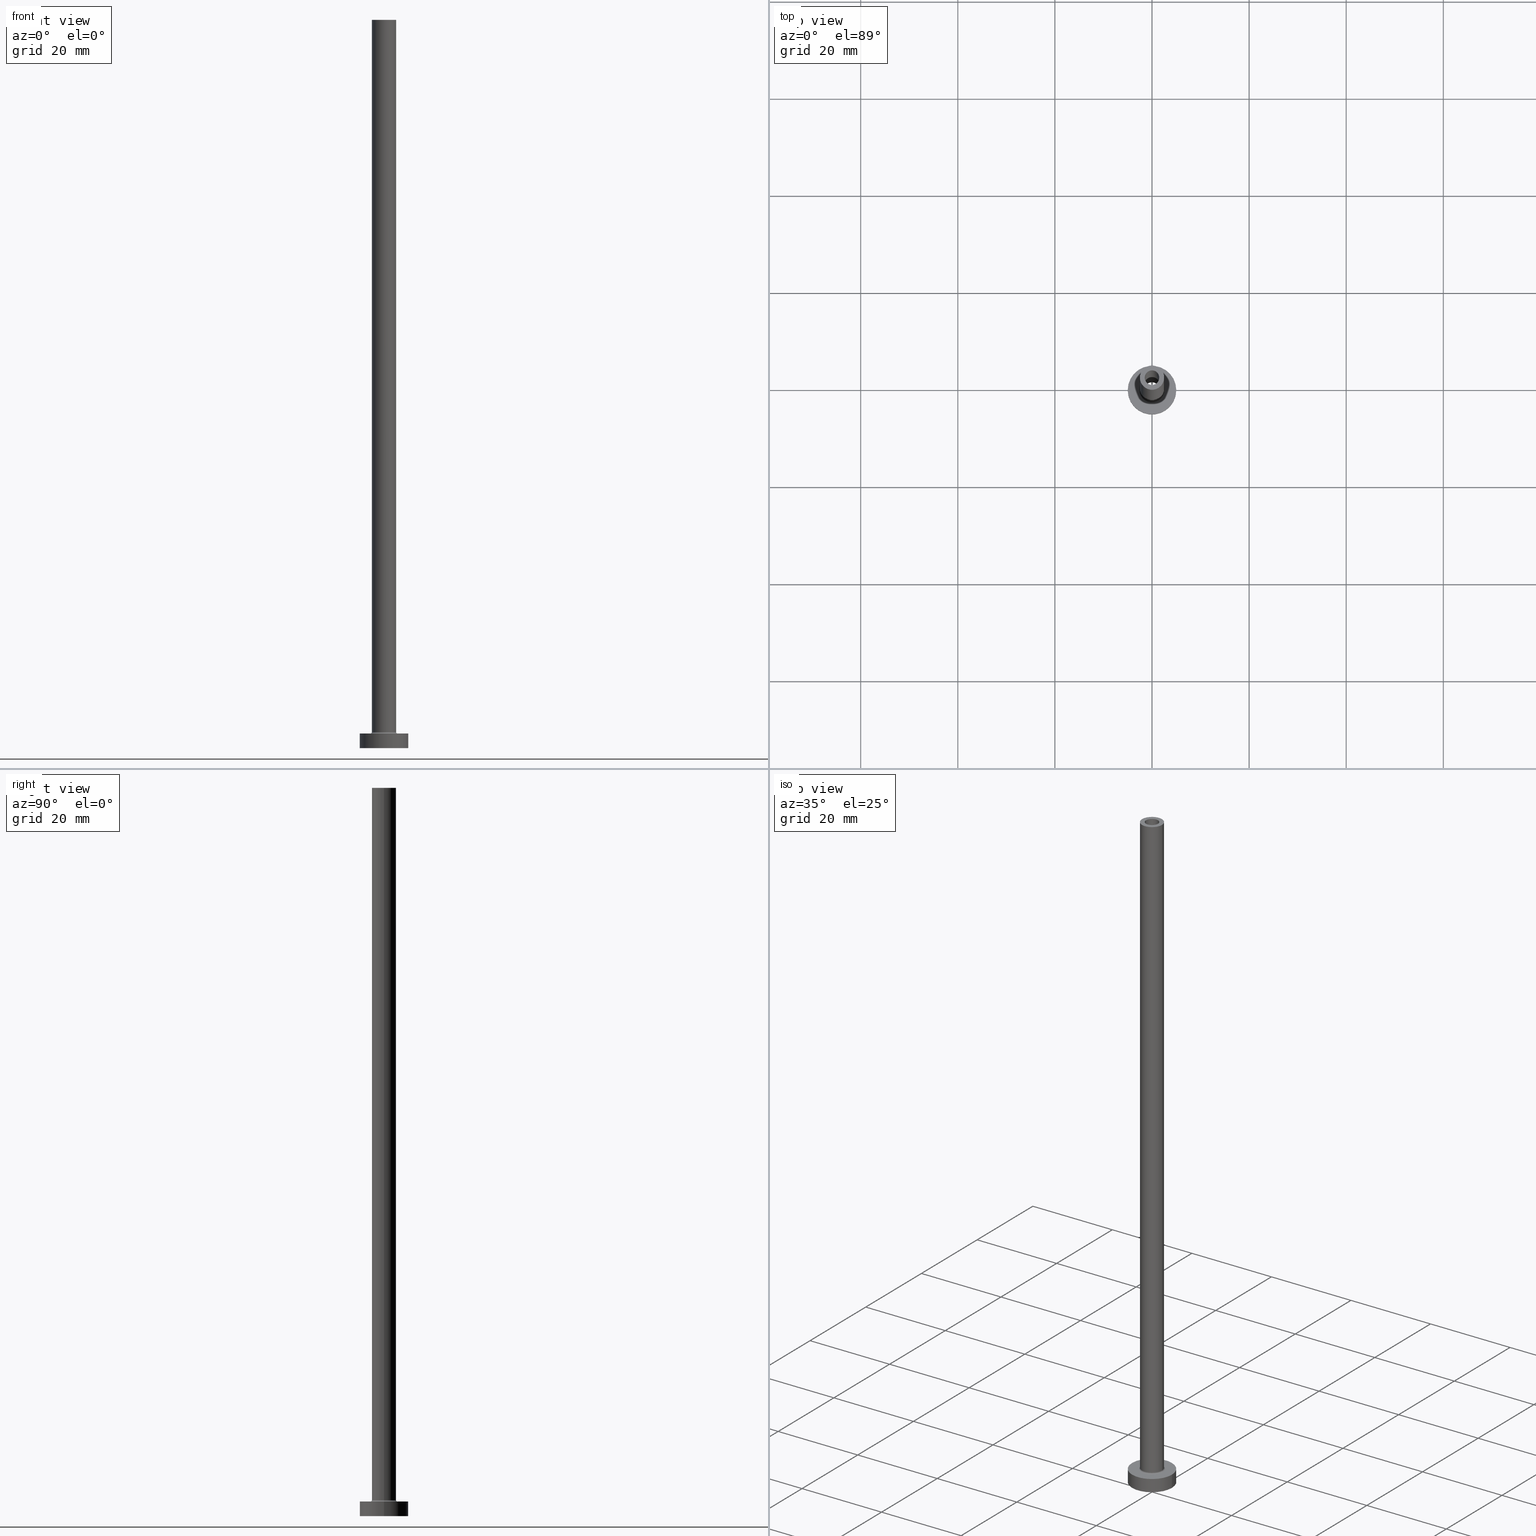
[diagram: canonical four-view strip — front | top / right | iso, engineering-drawing reading convention]
A machine part, canonical four-view strip (front | top / right | iso — engineering-drawing reading convention). The complete STEP part file that produces these views, byte-faithful:
ISO-10303-21;
HEADER;
FILE_DESCRIPTION (( 'STEP AP203' ),
    '1' );
FILE_NAME ('1228.STEP',
    '2023-02-13T12:04:37',
    ( '' ),
    ( '' ),
    'SwSTEP 2.0',
    'SolidWorks 2019',
    '' );
FILE_SCHEMA (( 'CONFIG_CONTROL_DESIGN' ));
ENDSEC;

DATA;
#1 = CARTESIAN_POINT ( 'NONE',  ( -1.500000000000000222, 0.000000000000000000, 105.0000000000000000 ) ) ;
#2 = FACE_OUTER_BOUND ( 'NONE', #183, .T. ) ;
#3 = ORIENTED_EDGE ( 'NONE', *, *, #229, .F. ) ;
#4 = CYLINDRICAL_SURFACE ( 'NONE', #396, 5.000000000000000000 ) ;
#5 = CARTESIAN_POINT ( 'NONE',  ( 2.799999999999999822, 0.000000000000000000, 2.999999999999998668 ) ) ;
#6 = APPROVAL ( #346, 'NEUR�EN�' ) ;
#7 = VERTEX_POINT ( 'NONE', #337 ) ;
#8 = DIRECTION ( 'NONE',  ( -1.000000000000000000, 0.000000000000000000, 0.000000000000000000 ) ) ;
#9 = ORIENTED_EDGE ( 'NONE', *, *, #54, .F. ) ;
#10 = CIRCLE ( 'NONE', #133, 1.650000000000000133 ) ;
#11 = APPLICATION_PROTOCOL_DEFINITION ( 'international standard', 'config_control_design', 1994, #374 ) ;
#12 = ORIENTED_EDGE ( 'NONE', *, *, #421, .F. ) ;
#13 = APPLICATION_PROTOCOL_DEFINITION ( 'international standard', 'config_control_design', 1994, #426 ) ;
#14 = VERTEX_POINT ( 'NONE', #269 ) ;
#15 = LOCAL_TIME ( 13, 4, 37.00000000000000000, #121 ) ;
#16 = CC_DESIGN_PERSON_AND_ORGANIZATION_ASSIGNMENT ( #240, #271, ( #317 ) ) ;
#17 = DIRECTION ( 'NONE',  ( 1.000000000000000000, 0.000000000000000000, 0.000000000000000000 ) ) ;
#18 = EDGE_CURVE ( 'NONE', #353, #49, #415, .T. ) ;
#19 = CARTESIAN_POINT ( 'NONE',  ( 5.000000000000000000, 6.123233995736766282E-16, 0.000000000000000000 ) ) ;
#20 = CYLINDRICAL_SURFACE ( 'NONE', #324, 5.000000000000000000 ) ;
#21 = ORIENTED_EDGE ( 'NONE', *, *, #168, .T. ) ;
#22 = DIRECTION ( 'NONE',  ( 0.000000000000000000, 0.000000000000000000, 1.000000000000000000 ) ) ;
#23 = VERTEX_POINT ( 'NONE', #19 ) ;
#24 = AXIS2_PLACEMENT_3D ( 'NONE', #432, #33, #389 ) ;
#25 = EDGE_CURVE ( 'NONE', #122, #326, #340, .T. ) ;
#26 = DIRECTION ( 'NONE',  ( -1.000000000000000000, 0.000000000000000000, 0.000000000000000000 ) ) ;
#27 = PLANE ( 'NONE',  #203 ) ;
#28 = CALENDAR_DATE ( 2023, 13, 2 ) ;
#29 = CARTESIAN_POINT ( 'NONE',  ( 0.000000000000000000, 0.000000000000000000, 150.0000000000000000 ) ) ;
#30 = CARTESIAN_POINT ( 'NONE',  ( 0.000000000000000000, 0.000000000000000000, 150.0000000000000000 ) ) ;
#31 = CLOSED_SHELL ( 'NONE', ( #404, #264, #224, #156, #293, #443, #247, #218, #370, #272, #47, #151, #452, #221 ) ) ;
#32 = DIRECTION ( 'NONE',  ( 1.000000000000000000, 0.000000000000000000, 0.000000000000000000 ) ) ;
#33 = DIRECTION ( 'NONE',  ( 0.000000000000000000, 0.000000000000000000, 1.000000000000000000 ) ) ;
#34 = EDGE_CURVE ( 'NONE', #286, #7, #140, .T. ) ;
#35 = CIRCLE ( 'NONE', #335, 5.000000000000000000 ) ;
#36 = APPROVAL_PERSON_ORGANIZATION ( #363, #277, #185 ) ;
#37 = DIRECTION ( 'NONE',  ( -0.000000000000000000, -0.000000000000000000, -1.000000000000000000 ) ) ;
#38 = ORIENTED_EDGE ( 'NONE', *, *, #444, .F. ) ;
#39 = PERSON_AND_ORGANIZATION ( #193, #236 ) ;
#40 = DIRECTION ( 'NONE',  ( 1.000000000000000000, 0.000000000000000000, 0.000000000000000000 ) ) ;
#41 = CARTESIAN_POINT ( 'NONE',  ( 0.000000000000000000, 0.000000000000000000, 150.0000000000000000 ) ) ;
#42 = AXIS2_PLACEMENT_3D ( 'NONE', #30, #319, #278 ) ;
#43 = CARTESIAN_POINT ( 'NONE',  ( 0.000000000000000000, 0.000000000000000000, 3.299999999999997158 ) ) ;
#44 = AXIS2_PLACEMENT_3D ( 'NONE', #41, #288, #424 ) ;
#45 = EDGE_LOOP ( 'NONE', ( #355, #403 ) ) ;
#46 = EDGE_LOOP ( 'NONE', ( #227, #51, #176, #259 ) ) ;
#47 = ADVANCED_FACE ( 'NONE', ( #84 ), #349, .F. ) ;
#48 = DIRECTION ( 'NONE',  ( -0.000000000000000000, -0.000000000000000000, -1.000000000000000000 ) ) ;
#49 = VERTEX_POINT ( 'NONE', #150 ) ;
#50 = DIRECTION ( 'NONE',  ( 0.000000000000000000, 0.000000000000000000, 1.000000000000000000 ) ) ;
#51 = ORIENTED_EDGE ( 'NONE', *, *, #115, .T. ) ;
#52 = CC_DESIGN_APPROVAL ( #277, ( #246 ) ) ;
#53 = COORDINATED_UNIVERSAL_TIME_OFFSET ( 1, 0, .AHEAD. ) ;
#54 = EDGE_CURVE ( 'NONE', #291, #332, #10, .T. ) ;
#55 = EDGE_LOOP ( 'NONE', ( #339, #220, #232, #178 ) ) ;
#56 =( NAMED_UNIT ( * ) PLANE_ANGLE_UNIT ( ) SI_UNIT ( $, .RADIAN. ) );
#57 = ORIENTED_EDGE ( 'NONE', *, *, #179, .F. ) ;
#58 = EDGE_CURVE ( 'NONE', #332, #14, #461, .T. ) ;
#59 = DIRECTION ( 'NONE',  ( -0.000000000000000000, -0.000000000000000000, -1.000000000000000000 ) ) ;
#60 = AXIS2_PLACEMENT_3D ( 'NONE', #152, #82, #338 ) ;
#61 = DATE_TIME_ROLE ( 'creation_date' ) ;
#62 = FACE_BOUND ( 'NONE', #141, .T. ) ;
#63 = PERSON_AND_ORGANIZATION ( #193, #236 ) ;
#64 = DIRECTION ( 'NONE',  ( 1.000000000000000000, 0.000000000000000000, 0.000000000000000000 ) ) ;
#65 = DATE_AND_TIME ( #96, #336 ) ;
#66 = CARTESIAN_POINT ( 'NONE',  ( 0.000000000000000000, 0.000000000000000000, 3.299999999999997158 ) ) ;
#67 = AXIS2_PLACEMENT_3D ( 'NONE', #266, #405, #217 ) ;
#68 = CARTESIAN_POINT ( 'NONE',  ( -1.500000000000000222, 0.000000000000000000, 150.0000000000000000 ) ) ;
#69 = VECTOR ( 'NONE', #59, 1000.000000000000000 ) ;
#70 = DIRECTION ( 'NONE',  ( -0.000000000000000000, -0.000000000000000000, -1.000000000000000000 ) ) ;
#71 = CYLINDRICAL_SURFACE ( 'NONE', #44, 2.500000000000000000 ) ;
#72 = VERTEX_POINT ( 'NONE', #376 ) ;
#73 = CIRCLE ( 'NONE', #244, 1.650000000000000133 ) ;
#74 = DIRECTION ( 'NONE',  ( -0.000000000000000000, -0.000000000000000000, -1.000000000000000000 ) ) ;
#75 = EDGE_CURVE ( 'NONE', #23, #79, #273, .T. ) ;
#76 = ORIENTED_EDGE ( 'NONE', *, *, #250, .T. ) ;
#77 = CARTESIAN_POINT ( 'NONE',  ( -2.500000000000000000, 0.000000000000000000, 150.0000000000000000 ) ) ;
#78 = AXIS2_PLACEMENT_3D ( 'NONE', #125, #242, #342 ) ;
#79 = VERTEX_POINT ( 'NONE', #381 ) ;
#80 = PLANE ( 'NONE',  #418 ) ;
#81 = ORIENTED_EDGE ( 'NONE', *, *, #365, .F. ) ;
#82 = DIRECTION ( 'NONE',  ( 0.000000000000000000, 0.000000000000000000, -1.000000000000000000 ) ) ;
#83 = DIRECTION ( 'NONE',  ( -0.000000000000000000, -0.000000000000000000, -1.000000000000000000 ) ) ;
#84 = FACE_OUTER_BOUND ( 'NONE', #261, .T. ) ;
#85 = CC_DESIGN_PERSON_AND_ORGANIZATION_ASSIGNMENT ( #412, #446, ( #317 ) ) ;
#86 = APPROVAL_STATUS ( 'not_yet_approved' ) ;
#87 = ORIENTED_EDGE ( 'NONE', *, *, #233, .F. ) ;
#88 = CALENDAR_DATE ( 2023, 13, 2 ) ;
#89 = CIRCLE ( 'NONE', #184, 2.799999999999999822 ) ;
#90 = ORIENTED_EDGE ( 'NONE', *, *, #175, .F. ) ;
#91 = CARTESIAN_POINT ( 'NONE',  ( 0.000000000000000000, 0.000000000000000000, 105.0000000000000000 ) ) ;
#92 = DIRECTION ( 'NONE',  ( 0.000000000000000000, 0.000000000000000000, 1.000000000000000000 ) ) ;
#93 = ORIENTED_EDGE ( 'NONE', *, *, #188, .F. ) ;
#94 = DIRECTION ( 'NONE',  ( 1.000000000000000000, 0.000000000000000000, 0.000000000000000000 ) ) ;
#95 = VECTOR ( 'NONE', #106, 1000.000000000000000 ) ;
#96 = CALENDAR_DATE ( 2023, 13, 2 ) ;
#97 = DIRECTION ( 'NONE',  ( 0.000000000000000000, 0.000000000000000000, -1.000000000000000000 ) ) ;
#98 = DIRECTION ( 'NONE',  ( 0.000000000000000000, 0.000000000000000000, 1.000000000000000000 ) ) ;
#99 = AXIS2_PLACEMENT_3D ( 'NONE', #43, #285, #394 ) ;
#100 = UNCERTAINTY_MEASURE_WITH_UNIT (LENGTH_MEASURE( 1.000000000000000082E-05 ), #263, 'distance_accuracy_value', 'NONE');
#101 = CARTESIAN_POINT ( 'NONE',  ( 1.650000000000000133, 2.020667218593133001E-16, 0.000000000000000000 ) ) ;
#102 = DIRECTION ( 'NONE',  ( 0.000000000000000000, 0.000000000000000000, 1.000000000000000000 ) ) ;
#103 = CARTESIAN_POINT ( 'NONE',  ( -1.650000000000000133, 0.000000000000000000, 105.0000000000000000 ) ) ;
#104 = VERTEX_POINT ( 'NONE', #101 ) ;
#105 = CIRCLE ( 'NONE', #437, 1.650000000000000133 ) ;
#106 = DIRECTION ( 'NONE',  ( 0.000000000000000000, 0.000000000000000000, -1.000000000000000000 ) ) ;
#107 = EDGE_LOOP ( 'NONE', ( #90, #109, #425, #93 ) ) ;
#108 = DIRECTION ( 'NONE',  ( 0.000000000000000000, 0.000000000000000000, 1.000000000000000000 ) ) ;
#109 = ORIENTED_EDGE ( 'NONE', *, *, #162, .T. ) ;
#110 = ADVANCED_BREP_SHAPE_REPRESENTATION ( '1228', ( #434, #438 ), #147 ) ;
#111 = DIRECTION ( 'NONE',  ( 0.000000000000000000, 0.000000000000000000, 1.000000000000000000 ) ) ;
#112 = CARTESIAN_POINT ( 'NONE',  ( 0.000000000000000000, 0.000000000000000000, 3.000000000000000000 ) ) ;
#113 = DIRECTION ( 'NONE',  ( -1.000000000000000000, 0.000000000000000000, 0.000000000000000000 ) ) ;
#114 = ORIENTED_EDGE ( 'NONE', *, *, #25, .T. ) ;
#115 = EDGE_CURVE ( 'NONE', #267, #23, #235, .T. ) ;
#116 = CARTESIAN_POINT ( 'NONE',  ( -5.000000000000000000, 0.000000000000000000, 3.000000000000000000 ) ) ;
#117 = VERTEX_POINT ( 'NONE', #164 ) ;
#118 = LINE ( 'NONE', #304, #196 ) ;
#119 = CARTESIAN_POINT ( 'NONE',  ( 0.000000000000000000, 0.000000000000000000, 3.299999999999997158 ) ) ;
#120 = CIRCLE ( 'NONE', #67, 2.500000000000000000 ) ;
#121 = COORDINATED_UNIVERSAL_TIME_OFFSET ( 1, 0, .AHEAD. ) ;
#122 = VERTEX_POINT ( 'NONE', #68 ) ;
#123 = FACE_OUTER_BOUND ( 'NONE', #135, .T. ) ;
#124 = CALENDAR_DATE ( 2023, 13, 2 ) ;
#125 = CARTESIAN_POINT ( 'NONE',  ( -2.799999999999999822, 3.429011037612588783E-16, 3.299999999999997158 ) ) ;
#126 = SECURITY_CLASSIFICATION ( '', '', #450 ) ;
#127 = DIRECTION ( 'NONE',  ( 1.000000000000000000, 0.000000000000000000, -0.000000000000000000 ) ) ;
#128 = CARTESIAN_POINT ( 'NONE',  ( 0.000000000000000000, 0.000000000000000000, 150.0000000000000000 ) ) ;
#129 = DIRECTION ( 'NONE',  ( 1.000000000000000000, 0.000000000000000000, 0.000000000000000000 ) ) ;
#130 = CARTESIAN_POINT ( 'NONE',  ( 2.500000000000000000, 3.061616997868383141E-16, 3.299999999999997158 ) ) ;
#131 = ORIENTED_EDGE ( 'NONE', *, *, #175, .T. ) ;
#132 = COORDINATED_UNIVERSAL_TIME_OFFSET ( 1, 0, .AHEAD. ) ;
#133 = AXIS2_PLACEMENT_3D ( 'NONE', #384, #419, #165 ) ;
#134 = FACE_OUTER_BOUND ( 'NONE', #302, .T. ) ;
#135 = EDGE_LOOP ( 'NONE', ( #153, #191, #328, #137 ) ) ;
#136 = CARTESIAN_POINT ( 'NONE',  ( 0.000000000000000000, 0.000000000000000000, 3.000000000000000000 ) ) ;
#137 = ORIENTED_EDGE ( 'NONE', *, *, #402, .T. ) ;
#138 = LINE ( 'NONE', #392, #362 ) ;
#139 = DIRECTION ( 'NONE',  ( 1.000000000000000000, 0.000000000000000000, -0.000000000000000000 ) ) ;
#140 = CIRCLE ( 'NONE', #385, 2.799999999999999822 ) ;
#141 = EDGE_LOOP ( 'NONE', ( #173, #361 ) ) ;
#142 = PRODUCT_RELATED_PRODUCT_CATEGORY ( 'detail', '', ( #253 ) ) ;
#143 = PERSON_AND_ORGANIZATION ( #193, #236 ) ;
#144 = EDGE_LOOP ( 'NONE', ( #431, #9 ) ) ;
#145 = CIRCLE ( 'NONE', #167, 5.000000000000000000 ) ;
#146 = DIRECTION ( 'NONE',  ( 0.000000000000000000, 0.000000000000000000, 1.000000000000000000 ) ) ;
#147 =( GEOMETRIC_REPRESENTATION_CONTEXT ( 3 ) GLOBAL_UNCERTAINTY_ASSIGNED_CONTEXT ( ( #100 ) ) GLOBAL_UNIT_ASSIGNED_CONTEXT ( ( #263, #56, #260 ) ) REPRESENTATION_CONTEXT ( 'NONE', 'WORKASPACE' ) );
#148 = ORIENTED_EDGE ( 'NONE', *, *, #188, .T. ) ;
#149 = LINE ( 'NONE', #116, #411 ) ;
#150 = CARTESIAN_POINT ( 'NONE',  ( -2.500000000000000000, 0.000000000000000000, 3.299999999999997158 ) ) ;
#151 = ADVANCED_FACE ( 'NONE', ( #123 ), #195, .F. ) ;
#152 = CARTESIAN_POINT ( 'NONE',  ( 0.000000000000000000, 0.000000000000000000, 150.0000000000000000 ) ) ;
#153 = ORIENTED_EDGE ( 'NONE', *, *, #250, .F. ) ;
#154 = AXIS2_PLACEMENT_3D ( 'NONE', #343, #456, #64 ) ;
#155 = ORIENTED_EDGE ( 'NONE', *, *, #18, .F. ) ;
#156 = ADVANCED_FACE ( 'NONE', ( #204 ), #282, .T. ) ;
#157 = APPROVAL_DATE_TIME ( #65, #231 ) ;
#158 = CARTESIAN_POINT ( 'NONE',  ( 0.000000000000000000, 0.000000000000000000, 0.000000000000000000 ) ) ;
#159 = DIRECTION ( 'NONE',  ( 1.000000000000000000, 0.000000000000000000, 0.000000000000000000 ) ) ;
#160 = DATE_AND_TIME ( #287, #390 ) ;
#161 = CARTESIAN_POINT ( 'NONE',  ( 0.000000000000000000, 0.000000000000000000, 150.0000000000000000 ) ) ;
#162 = EDGE_CURVE ( 'NONE', #49, #7, #311, .T. ) ;
#163 = PERSON_AND_ORGANIZATION ( #193, #236 ) ;
#164 = CARTESIAN_POINT ( 'NONE',  ( 2.500000000000000000, 3.061616997868383141E-16, 150.0000000000000000 ) ) ;
#165 = DIRECTION ( 'NONE',  ( 1.000000000000000000, 0.000000000000000000, 0.000000000000000000 ) ) ;
#166 = CARTESIAN_POINT ( 'NONE',  ( 5.000000000000000000, 6.123233995736766282E-16, 3.000000000000000000 ) ) ;
#167 = AXIS2_PLACEMENT_3D ( 'NONE', #275, #202, #321 ) ;
#168 = EDGE_CURVE ( 'NONE', #326, #72, #243, .T. ) ;
#169 = FACE_OUTER_BOUND ( 'NONE', #107, .T. ) ;
#170 = ORIENTED_EDGE ( 'NONE', *, *, #58, .F. ) ;
#171 = APPROVAL_ROLE ( '' ) ;
#172 = FACE_BOUND ( 'NONE', #309, .T. ) ;
#173 = ORIENTED_EDGE ( 'NONE', *, *, #402, .F. ) ;
#174 = CARTESIAN_POINT ( 'NONE',  ( -2.500000000000000000, 0.000000000000000000, 150.0000000000000000 ) ) ;
#175 = EDGE_CURVE ( 'NONE', #49, #353, #330, .T. ) ;
#176 = ORIENTED_EDGE ( 'NONE', *, *, #75, .T. ) ;
#177 = DIRECTION ( 'NONE',  ( 1.000000000000000000, 0.000000000000000000, 0.000000000000000000 ) ) ;
#178 = ORIENTED_EDGE ( 'NONE', *, *, #25, .F. ) ;
#179 = EDGE_CURVE ( 'NONE', #79, #23, #35, .T. ) ;
#180 = AXIS2_PLACEMENT_3D ( 'NONE', #451, #97, #26 ) ;
#181 = ORIENTED_EDGE ( 'NONE', *, *, #458, .T. ) ;
#182 = CARTESIAN_POINT ( 'NONE',  ( 0.000000000000000000, 0.000000000000000000, 0.000000000000000000 ) ) ;
#183 = EDGE_LOOP ( 'NONE', ( #181, #387 ) ) ;
#184 = AXIS2_PLACEMENT_3D ( 'NONE', #136, #258, #351 ) ;
#185 = APPROVAL_ROLE ( '' ) ;
#186 = ORIENTED_EDGE ( 'NONE', *, *, #115, .F. ) ;
#187 = DATE_AND_TIME ( #88, #209 ) ;
#188 = EDGE_CURVE ( 'NONE', #353, #286, #345, .T. ) ;
#189 = ORIENTED_EDGE ( 'NONE', *, *, #198, .F. ) ;
#190 = FACE_BOUND ( 'NONE', #216, .T. ) ;
#191 = ORIENTED_EDGE ( 'NONE', *, *, #54, .T. ) ;
#192 = EDGE_CURVE ( 'NONE', #223, #267, #145, .T. ) ;
#193 = PERSON ( 'NEUR�EN�', 'NEUR�EN�', 'NEUR�EN�', ('NEUR�EN�'), ('NEUR�EN�'), ('NEUR�EN�') ) ;
#194 = AXIS2_PLACEMENT_3D ( 'NONE', #325, #430, #8 ) ;
#195 = CYLINDRICAL_SURFACE ( 'NONE', #180, 1.650000000000000133 ) ;
#196 = VECTOR ( 'NONE', #48, 1000.000000000000000 ) ;
#197 = CC_DESIGN_PERSON_AND_ORGANIZATION_ASSIGNMENT ( #39, #310, ( #246 ) ) ;
#198 = EDGE_CURVE ( 'NONE', #391, #122, #388, .T. ) ;
#199 = FACE_OUTER_BOUND ( 'NONE', #422, .T. ) ;
#200 = EDGE_CURVE ( 'NONE', #122, #391, #316, .T. ) ;
#201 = DIRECTION ( 'NONE',  ( 0.000000000000000000, 0.000000000000000000, 1.000000000000000000 ) ) ;
#202 = DIRECTION ( 'NONE',  ( 0.000000000000000000, 0.000000000000000000, 1.000000000000000000 ) ) ;
#203 = AXIS2_PLACEMENT_3D ( 'NONE', #379, #201, #127 ) ;
#204 = FACE_OUTER_BOUND ( 'NONE', #364, .T. ) ;
#205 = CYLINDRICAL_SURFACE ( 'NONE', #194, 1.650000000000000133 ) ;
#206 = DIRECTION ( 'NONE',  ( 0.000000000000000000, 0.000000000000000000, -1.000000000000000000 ) ) ;
#207 = ORIENTED_EDGE ( 'NONE', *, *, #200, .F. ) ;
#208 = AXIS2_PLACEMENT_3D ( 'NONE', #29, #280, #416 ) ;
#209 = LOCAL_TIME ( 13, 4, 37.00000000000000000, #53 ) ;
#210 = CARTESIAN_POINT ( 'NONE',  ( 1.500000000000000222, 1.836970198721029934E-16, 150.0000000000000000 ) ) ;
#211 = ORIENTED_EDGE ( 'NONE', *, *, #179, .T. ) ;
#212 = AXIS2_PLACEMENT_3D ( 'NONE', #314, #98, #129 ) ;
#213 = CARTESIAN_POINT ( 'NONE',  ( 0.000000000000000000, 0.000000000000000000, 3.000000000000000000 ) ) ;
#214 = ORIENTED_EDGE ( 'NONE', *, *, #18, .T. ) ;
#215 = CARTESIAN_POINT ( 'NONE',  ( 0.000000000000000000, 0.000000000000000000, 3.000000000000000000 ) ) ;
#216 = EDGE_LOOP ( 'NONE', ( #21, #289 ) ) ;
#217 = DIRECTION ( 'NONE',  ( 1.000000000000000000, 0.000000000000000000, 0.000000000000000000 ) ) ;
#218 = ADVANCED_FACE ( 'NONE', ( #62, #199 ), #27, .F. ) ;
#219 = DIRECTION ( 'NONE',  ( 1.000000000000000000, 0.000000000000000000, 0.000000000000000000 ) ) ;
#220 = ORIENTED_EDGE ( 'NONE', *, *, #365, .T. ) ;
#221 = ADVANCED_FACE ( 'NONE', ( #344 ), #281, .F. ) ;
#222 = CARTESIAN_POINT ( 'NONE',  ( 0.000000000000000000, 0.000000000000000000, 105.0000000000000000 ) ) ;
#223 = VERTEX_POINT ( 'NONE', #417 ) ;
#224 = ADVANCED_FACE ( 'NONE', ( #169 ), #410, .F. ) ;
#225 = CIRCLE ( 'NONE', #292, 1.500000000000000222 ) ;
#226 = CC_DESIGN_SECURITY_CLASSIFICATION ( #126, ( #317 ) ) ;
#227 = ORIENTED_EDGE ( 'NONE', *, *, #307, .F. ) ;
#228 = FACE_OUTER_BOUND ( 'NONE', #144, .T. ) ;
#229 = EDGE_CURVE ( 'NONE', #7, #286, #89, .T. ) ;
#230 = DIRECTION ( 'NONE',  ( 1.000000000000000000, 0.000000000000000000, 0.000000000000000000 ) ) ;
#231 = APPROVAL ( #380, 'NEUR�EN�' ) ;
#232 = ORIENTED_EDGE ( 'NONE', *, *, #168, .F. ) ;
#233 = EDGE_CURVE ( 'NONE', #254, #49, #290, .T. ) ;
#234 = PERSON_AND_ORGANIZATION ( #193, #236 ) ;
#235 = LINE ( 'NONE', #413, #69 ) ;
#236 = ORGANIZATION ( 'NEUR�EN�', 'NEUR�EN�', '' ) ;
#237 = APPROVAL_DATE_TIME ( #276, #6 ) ;
#238 = DIRECTION ( 'NONE',  ( 0.000000000000000000, 0.000000000000000000, 1.000000000000000000 ) ) ;
#239 = VECTOR ( 'NONE', #445, 1000.000000000000000 ) ;
#240 = PERSON_AND_ORGANIZATION ( #193, #236 ) ;
#241 = DIRECTION ( 'NONE',  ( -0.000000000000000000, -0.000000000000000000, -1.000000000000000000 ) ) ;
#242 = DIRECTION ( 'NONE',  ( 1.224646799147353207E-16, 1.000000000000000000, -0.000000000000000000 ) ) ;
#243 = CIRCLE ( 'NONE', #154, 1.500000000000000222 ) ;
#244 = AXIS2_PLACEMENT_3D ( 'NONE', #354, #327, #329 ) ;
#245 = DIRECTION ( 'NONE',  ( -1.000000000000000000, 0.000000000000000000, 0.000000000000000000 ) ) ;
#246 = PRODUCT_DEFINITION ( 'NEZN�M�', '', #317, #296 ) ;
#247 = ADVANCED_FACE ( 'NONE', ( #172, #420 ), #80, .T. ) ;
#248 = CARTESIAN_POINT ( 'NONE',  ( 1.650000000000000133, 2.020667218593133001E-16, 105.0000000000000000 ) ) ;
#249 = ORIENTED_EDGE ( 'NONE', *, *, #433, .T. ) ;
#250 = EDGE_CURVE ( 'NONE', #291, #104, #138, .T. ) ;
#251 = COORDINATED_UNIVERSAL_TIME_OFFSET ( 1, 0, .AHEAD. ) ;
#252 = LINE ( 'NONE', #257, #95 ) ;
#253 = PRODUCT ( '1228', '1228', '', ( #333 ) ) ;
#254 = VERTEX_POINT ( 'NONE', #77 ) ;
#255 = AXIS2_PLACEMENT_3D ( 'NONE', #378, #347, #449 ) ;
#256 = CIRCLE ( 'NONE', #383, 2.500000000000000000 ) ;
#257 = CARTESIAN_POINT ( 'NONE',  ( 1.500000000000000222, 1.836970198721029934E-16, 150.0000000000000000 ) ) ;
#258 = DIRECTION ( 'NONE',  ( -0.000000000000000000, -0.000000000000000000, -1.000000000000000000 ) ) ;
#259 = ORIENTED_EDGE ( 'NONE', *, *, #433, .F. ) ;
#260 =( NAMED_UNIT ( * ) SI_UNIT ( $, .STERADIAN. ) SOLID_ANGLE_UNIT ( ) );
#261 = EDGE_LOOP ( 'NONE', ( #305, #155, #148, #3 ) ) ;
#262 = CIRCLE ( 'NONE', #453, 5.000000000000000000 ) ;
#263 =( LENGTH_UNIT ( ) NAMED_UNIT ( * ) SI_UNIT ( .MILLI., .METRE. ) );
#264 = ADVANCED_FACE ( 'NONE', ( #331 ), #205, .F. ) ;
#265 = DIRECTION ( 'NONE',  ( -0.000000000000000000, -0.000000000000000000, -1.000000000000000000 ) ) ;
#266 = CARTESIAN_POINT ( 'NONE',  ( 0.000000000000000000, 0.000000000000000000, 150.0000000000000000 ) ) ;
#267 = VERTEX_POINT ( 'NONE', #166 ) ;
#268 = DIRECTION ( 'NONE',  ( 1.000000000000000000, 0.000000000000000000, -0.000000000000000000 ) ) ;
#269 = CARTESIAN_POINT ( 'NONE',  ( -1.650000000000000133, 0.000000000000000000, 0.000000000000000000 ) ) ;
#270 = CARTESIAN_POINT ( 'NONE',  ( -1.500000000000000222, 0.000000000000000000, 150.0000000000000000 ) ) ;
#271 = PERSON_AND_ORGANIZATION_ROLE ( 'design_supplier' ) ;
#272 = ADVANCED_FACE ( 'NONE', ( #350, #2 ), #294, .T. ) ;
#273 = CIRCLE ( 'NONE', #212, 5.000000000000000000 ) ;
#274 = ORIENTED_EDGE ( 'NONE', *, *, #229, .T. ) ;
#275 = CARTESIAN_POINT ( 'NONE',  ( 0.000000000000000000, 0.000000000000000000, 3.000000000000000000 ) ) ;
#276 = DATE_AND_TIME ( #124, #15 ) ;
#277 = APPROVAL ( #86, 'NEUR�EN�' ) ;
#278 = DIRECTION ( 'NONE',  ( 1.000000000000000000, 0.000000000000000000, 0.000000000000000000 ) ) ;
#279 = CC_DESIGN_APPROVAL ( #6, ( #317 ) ) ;
#280 = DIRECTION ( 'NONE',  ( 0.000000000000000000, 0.000000000000000000, -1.000000000000000000 ) ) ;
#281 = CYLINDRICAL_SURFACE ( 'NONE', #208, 1.500000000000000222 ) ;
#282 = CYLINDRICAL_SURFACE ( 'NONE', #303, 2.500000000000000000 ) ;
#283 = AXIS2_PLACEMENT_3D ( 'NONE', #128, #408, #94 ) ;
#284 = LOCAL_TIME ( 13, 4, 37.00000000000000000, #313 ) ;
#285 = DIRECTION ( 'NONE',  ( 0.000000000000000000, 0.000000000000000000, 1.000000000000000000 ) ) ;
#286 = VERTEX_POINT ( 'NONE', #5 ) ;
#287 = CALENDAR_DATE ( 2023, 13, 2 ) ;
#288 = DIRECTION ( 'NONE',  ( -0.000000000000000000, -0.000000000000000000, -1.000000000000000000 ) ) ;
#289 = ORIENTED_EDGE ( 'NONE', *, *, #356, .T. ) ;
#290 = LINE ( 'NONE', #174, #427 ) ;
#291 = VERTEX_POINT ( 'NONE', #248 ) ;
#292 = AXIS2_PLACEMENT_3D ( 'NONE', #357, #102, #386 ) ;
#293 = ADVANCED_FACE ( 'NONE', ( #297 ), #4, .T. ) ;
#294 = PLANE ( 'NONE',  #24 ) ;
#295 = ORIENTED_EDGE ( 'NONE', *, *, #198, .T. ) ;
#296 = DESIGN_CONTEXT ( 'detailed design', #426, 'design' ) ;
#297 = FACE_OUTER_BOUND ( 'NONE', #46, .T. ) ;
#298 = ORIENTED_EDGE ( 'NONE', *, *, #421, .T. ) ;
#299 = EDGE_LOOP ( 'NONE', ( #81, #295, #114, #447 ) ) ;
#300 = APPROVAL_PERSON_ORGANIZATION ( #63, #6, #171 ) ;
#301 = FACE_OUTER_BOUND ( 'NONE', #55, .T. ) ;
#302 = EDGE_LOOP ( 'NONE', ( #12, #393, #334, #131 ) ) ;
#303 = AXIS2_PLACEMENT_3D ( 'NONE', #161, #241, #318 ) ;
#304 = CARTESIAN_POINT ( 'NONE',  ( 2.500000000000000000, 3.061616997868383141E-16, 150.0000000000000000 ) ) ;
#305 = ORIENTED_EDGE ( 'NONE', *, *, #162, .F. ) ;
#306 = DIRECTION ( 'NONE',  ( 1.000000000000000000, 0.000000000000000000, 0.000000000000000000 ) ) ;
#307 = EDGE_CURVE ( 'NONE', #267, #223, #262, .T. ) ;
#308 = AXIS2_PLACEMENT_3D ( 'NONE', #91, #146, #17 ) ;
#309 = EDGE_LOOP ( 'NONE', ( #373, #274 ) ) ;
#310 = PERSON_AND_ORGANIZATION_ROLE ( 'creator' ) ;
#311 = CIRCLE ( 'NONE', #78, 0.2999999999999999334 ) ;
#312 = CARTESIAN_POINT ( 'NONE',  ( -1.650000000000000133, 0.000000000000000000, 109.6669047558311973 ) ) ;
#313 = COORDINATED_UNIVERSAL_TIME_OFFSET ( 1, 0, .AHEAD. ) ;
#314 = CARTESIAN_POINT ( 'NONE',  ( 0.000000000000000000, 0.000000000000000000, 0.000000000000000000 ) ) ;
#315 = PRODUCT_DEFINITION_SHAPE ( 'NONE', 'NONE',  #246 ) ;
#316 = CIRCLE ( 'NONE', #283, 1.500000000000000222 ) ;
#317 = PRODUCT_DEFINITION_FORMATION_WITH_SPECIFIED_SOURCE ( 'LIBOVOLN�', '', #253, .NOT_KNOWN. ) ;
#318 = DIRECTION ( 'NONE',  ( -1.000000000000000000, 0.000000000000000000, 0.000000000000000000 ) ) ;
#319 = DIRECTION ( 'NONE',  ( 0.000000000000000000, 0.000000000000000000, 1.000000000000000000 ) ) ;
#320 = AXIS2_PLACEMENT_3D ( 'NONE', #440, #401, #306 ) ;
#321 = DIRECTION ( 'NONE',  ( 1.000000000000000000, 0.000000000000000000, 0.000000000000000000 ) ) ;
#322 = EDGE_CURVE ( 'NONE', #104, #14, #105, .T. ) ;
#323 = CARTESIAN_POINT ( 'NONE',  ( 0.000000000000000000, 0.000000000000000000, 0.000000000000000000 ) ) ;
#324 = AXIS2_PLACEMENT_3D ( 'NONE', #439, #83, #113 ) ;
#325 = CARTESIAN_POINT ( 'NONE',  ( 0.000000000000000000, 0.000000000000000000, 109.6669047558311973 ) ) ;
#326 = VERTEX_POINT ( 'NONE', #1 ) ;
#327 = DIRECTION ( 'NONE',  ( -0.000000000000000000, -0.000000000000000000, -1.000000000000000000 ) ) ;
#328 = ORIENTED_EDGE ( 'NONE', *, *, #58, .T. ) ;
#329 = DIRECTION ( 'NONE',  ( 1.000000000000000000, 0.000000000000000000, 0.000000000000000000 ) ) ;
#330 = CIRCLE ( 'NONE', #377, 2.500000000000000000 ) ;
#331 = FACE_OUTER_BOUND ( 'NONE', #442, .T. ) ;
#332 = VERTEX_POINT ( 'NONE', #103 ) ;
#333 = MECHANICAL_CONTEXT ( 'NONE', #374, 'mechanical' ) ;
#334 = ORIENTED_EDGE ( 'NONE', *, *, #233, .T. ) ;
#335 = AXIS2_PLACEMENT_3D ( 'NONE', #158, #238, #159 ) ;
#336 = LOCAL_TIME ( 13, 4, 37.00000000000000000, #251 ) ;
#337 = CARTESIAN_POINT ( 'NONE',  ( -2.799999999999999822, 3.429011037612589276E-16, 2.999999999999998668 ) ) ;
#338 = DIRECTION ( 'NONE',  ( -1.000000000000000000, 0.000000000000000000, 0.000000000000000000 ) ) ;
#339 = ORIENTED_EDGE ( 'NONE', *, *, #200, .T. ) ;
#340 = LINE ( 'NONE', #270, #239 ) ;
#341 = CC_DESIGN_APPROVAL ( #231, ( #126 ) ) ;
#342 = DIRECTION ( 'NONE',  ( -1.000000000000000000, 1.224646799147353207E-16, 0.000000000000000000 ) ) ;
#343 = CARTESIAN_POINT ( 'NONE',  ( 0.000000000000000000, 0.000000000000000000, 105.0000000000000000 ) ) ;
#344 = FACE_OUTER_BOUND ( 'NONE', #299, .T. ) ;
#345 = CIRCLE ( 'NONE', #255, 0.2999999999999999334 ) ;
#346 = APPROVAL_STATUS ( 'not_yet_approved' ) ;
#347 = DIRECTION ( 'NONE',  ( 0.000000000000000000, -1.000000000000000000, 0.000000000000000000 ) ) ;
#348 = DIRECTION ( 'NONE',  ( 0.000000000000000000, 0.000000000000000000, -1.000000000000000000 ) ) ;
#349 = TOROIDAL_SURFACE ( 'NONE', #406, 2.799999999999999822, 0.2999999999999999889 ) ;
#350 = FACE_BOUND ( 'NONE', #371, .T. ) ;
#351 = DIRECTION ( 'NONE',  ( 1.000000000000000000, 0.000000000000000000, 0.000000000000000000 ) ) ;
#352 = APPROVAL_PERSON_ORGANIZATION ( #234, #231, #375 ) ;
#353 = VERTEX_POINT ( 'NONE', #130 ) ;
#354 = CARTESIAN_POINT ( 'NONE',  ( 0.000000000000000000, 0.000000000000000000, 0.000000000000000000 ) ) ;
#355 = ORIENTED_EDGE ( 'NONE', *, *, #192, .T. ) ;
#356 = EDGE_CURVE ( 'NONE', #72, #326, #225, .T. ) ;
#357 = CARTESIAN_POINT ( 'NONE',  ( 0.000000000000000000, 0.000000000000000000, 105.0000000000000000 ) ) ;
#358 = ORIENTED_EDGE ( 'NONE', *, *, #192, .F. ) ;
#359 = CC_DESIGN_PERSON_AND_ORGANIZATION_ASSIGNMENT ( #143, #398, ( #253 ) ) ;
#360 = DIRECTION ( 'NONE',  ( 0.000000000000000000, 0.000000000000000000, 1.000000000000000000 ) ) ;
#361 = ORIENTED_EDGE ( 'NONE', *, *, #322, .F. ) ;
#362 = VECTOR ( 'NONE', #206, 1000.000000000000000 ) ;
#363 = PERSON_AND_ORGANIZATION ( #193, #236 ) ;
#364 = EDGE_LOOP ( 'NONE', ( #38, #298, #214, #87 ) ) ;
#365 = EDGE_CURVE ( 'NONE', #391, #72, #252, .T. ) ;
#366 = CYLINDRICAL_SURFACE ( 'NONE', #60, 1.500000000000000222 ) ;
#367 = ORIENTED_EDGE ( 'NONE', *, *, #322, .T. ) ;
#368 = CC_DESIGN_DATE_AND_TIME_ASSIGNMENT ( #455, #61, ( #246 ) ) ;
#369 = DIRECTION ( 'NONE',  ( 1.000000000000000000, 0.000000000000000000, 0.000000000000000000 ) ) ;
#370 = ADVANCED_FACE ( 'NONE', ( #134 ), #71, .T. ) ;
#371 = EDGE_LOOP ( 'NONE', ( #207, #189 ) ) ;
#372 = DIRECTION ( 'NONE',  ( -0.000000000000000000, -0.000000000000000000, -1.000000000000000000 ) ) ;
#373 = ORIENTED_EDGE ( 'NONE', *, *, #34, .T. ) ;
#374 = APPLICATION_CONTEXT ( 'configuration controlled 3d designs of mechanical parts and assemblies' ) ;
#375 = APPROVAL_ROLE ( '' ) ;
#376 = CARTESIAN_POINT ( 'NONE',  ( 1.500000000000000222, 1.836970198721029934E-16, 105.0000000000000000 ) ) ;
#377 = AXIS2_PLACEMENT_3D ( 'NONE', #66, #460, #32 ) ;
#378 = CARTESIAN_POINT ( 'NONE',  ( 2.799999999999999822, 0.000000000000000000, 3.299999999999997158 ) ) ;
#379 = CARTESIAN_POINT ( 'NONE',  ( 0.000000000000000000, 0.000000000000000000, 0.000000000000000000 ) ) ;
#380 = APPROVAL_STATUS ( 'not_yet_approved' ) ;
#381 = CARTESIAN_POINT ( 'NONE',  ( -5.000000000000000000, 0.000000000000000000, 0.000000000000000000 ) ) ;
#382 = CC_DESIGN_DATE_AND_TIME_ASSIGNMENT ( #160, #423, ( #126 ) ) ;
#383 = AXIS2_PLACEMENT_3D ( 'NONE', #441, #111, #369 ) ;
#384 = CARTESIAN_POINT ( 'NONE',  ( 0.000000000000000000, 0.000000000000000000, 105.0000000000000000 ) ) ;
#385 = AXIS2_PLACEMENT_3D ( 'NONE', #112, #265, #399 ) ;
#386 = DIRECTION ( 'NONE',  ( 1.000000000000000000, 0.000000000000000000, 0.000000000000000000 ) ) ;
#387 = ORIENTED_EDGE ( 'NONE', *, *, #444, .T. ) ;
#388 = CIRCLE ( 'NONE', #42, 1.500000000000000222 ) ;
#389 = DIRECTION ( 'NONE',  ( 1.000000000000000000, 0.000000000000000000, -0.000000000000000000 ) ) ;
#390 = LOCAL_TIME ( 13, 4, 37.00000000000000000, #132 ) ;
#391 = VERTEX_POINT ( 'NONE', #210 ) ;
#392 = CARTESIAN_POINT ( 'NONE',  ( 1.650000000000000133, 2.020667218593133001E-16, 109.6669047558311973 ) ) ;
#393 = ORIENTED_EDGE ( 'NONE', *, *, #458, .F. ) ;
#394 = DIRECTION ( 'NONE',  ( 1.000000000000000000, 0.000000000000000000, 0.000000000000000000 ) ) ;
#395 = FACE_OUTER_BOUND ( 'NONE', #429, .T. ) ;
#396 = AXIS2_PLACEMENT_3D ( 'NONE', #213, #37, #245 ) ;
#397 = CIRCLE ( 'NONE', #308, 1.650000000000000133 ) ;
#398 = PERSON_AND_ORGANIZATION_ROLE ( 'design_owner' ) ;
#399 = DIRECTION ( 'NONE',  ( 1.000000000000000000, 0.000000000000000000, 0.000000000000000000 ) ) ;
#400 = VECTOR ( 'NONE', #348, 1000.000000000000000 ) ;
#401 = DIRECTION ( 'NONE',  ( 0.000000000000000000, 0.000000000000000000, 1.000000000000000000 ) ) ;
#402 = EDGE_CURVE ( 'NONE', #14, #104, #73, .T. ) ;
#403 = ORIENTED_EDGE ( 'NONE', *, *, #307, .T. ) ;
#404 = ADVANCED_FACE ( 'NONE', ( #301 ), #366, .F. ) ;
#405 = DIRECTION ( 'NONE',  ( 0.000000000000000000, 0.000000000000000000, 1.000000000000000000 ) ) ;
#406 = AXIS2_PLACEMENT_3D ( 'NONE', #119, #92, #230 ) ;
#407 = ORIENTED_EDGE ( 'NONE', *, *, #409, .T. ) ;
#408 = DIRECTION ( 'NONE',  ( 0.000000000000000000, 0.000000000000000000, 1.000000000000000000 ) ) ;
#409 = EDGE_CURVE ( 'NONE', #332, #291, #397, .T. ) ;
#410 = TOROIDAL_SURFACE ( 'NONE', #99, 2.799999999999999822, 0.2999999999999999889 ) ;
#411 = VECTOR ( 'NONE', #372, 1000.000000000000000 ) ;
#412 = PERSON_AND_ORGANIZATION ( #193, #236 ) ;
#413 = CARTESIAN_POINT ( 'NONE',  ( 5.000000000000000000, 6.123233995736766282E-16, 3.000000000000000000 ) ) ;
#414 = PERSON_AND_ORGANIZATION_ROLE ( 'classification_officer' ) ;
#415 = CIRCLE ( 'NONE', #320, 2.500000000000000000 ) ;
#416 = DIRECTION ( 'NONE',  ( -1.000000000000000000, 0.000000000000000000, 0.000000000000000000 ) ) ;
#417 = CARTESIAN_POINT ( 'NONE',  ( -5.000000000000000000, 0.000000000000000000, 3.000000000000000000 ) ) ;
#418 = AXIS2_PLACEMENT_3D ( 'NONE', #428, #108, #139 ) ;
#419 = DIRECTION ( 'NONE',  ( 0.000000000000000000, 0.000000000000000000, 1.000000000000000000 ) ) ;
#420 = FACE_OUTER_BOUND ( 'NONE', #45, .T. ) ;
#421 = EDGE_CURVE ( 'NONE', #117, #353, #118, .T. ) ;
#422 = EDGE_LOOP ( 'NONE', ( #57, #436 ) ) ;
#423 = DATE_TIME_ROLE ( 'classification_date' ) ;
#424 = DIRECTION ( 'NONE',  ( -1.000000000000000000, 0.000000000000000000, 0.000000000000000000 ) ) ;
#425 = ORIENTED_EDGE ( 'NONE', *, *, #34, .F. ) ;
#426 = APPLICATION_CONTEXT ( 'configuration controlled 3d designs of mechanical parts and assemblies' ) ;
#427 = VECTOR ( 'NONE', #70, 1000.000000000000000 ) ;
#428 = CARTESIAN_POINT ( 'NONE',  ( 0.000000000000000000, 0.000000000000000000, 3.000000000000000000 ) ) ;
#429 = EDGE_LOOP ( 'NONE', ( #186, #358, #249, #211 ) ) ;
#430 = DIRECTION ( 'NONE',  ( 0.000000000000000000, 0.000000000000000000, -1.000000000000000000 ) ) ;
#431 = ORIENTED_EDGE ( 'NONE', *, *, #409, .F. ) ;
#432 = CARTESIAN_POINT ( 'NONE',  ( 0.000000000000000000, 0.000000000000000000, 150.0000000000000000 ) ) ;
#433 = EDGE_CURVE ( 'NONE', #223, #79, #149, .T. ) ;
#434 = MANIFOLD_SOLID_BREP ( 'Odebrat vysunut�m4', #31 ) ;
#435 = PLANE ( 'NONE',  #454 ) ;
#436 = ORIENTED_EDGE ( 'NONE', *, *, #75, .F. ) ;
#437 = AXIS2_PLACEMENT_3D ( 'NONE', #323, #74, #40 ) ;
#438 = AXIS2_PLACEMENT_3D ( 'NONE', #182, #22, #219 ) ;
#439 = CARTESIAN_POINT ( 'NONE',  ( 0.000000000000000000, 0.000000000000000000, 3.000000000000000000 ) ) ;
#440 = CARTESIAN_POINT ( 'NONE',  ( 0.000000000000000000, 0.000000000000000000, 3.299999999999997158 ) ) ;
#441 = CARTESIAN_POINT ( 'NONE',  ( 0.000000000000000000, 0.000000000000000000, 150.0000000000000000 ) ) ;
#442 = EDGE_LOOP ( 'NONE', ( #407, #76, #367, #170 ) ) ;
#443 = ADVANCED_FACE ( 'NONE', ( #395 ), #20, .T. ) ;
#444 = EDGE_CURVE ( 'NONE', #117, #254, #120, .T. ) ;
#445 = DIRECTION ( 'NONE',  ( 0.000000000000000000, 0.000000000000000000, -1.000000000000000000 ) ) ;
#446 = PERSON_AND_ORGANIZATION_ROLE ( 'creator' ) ;
#447 = ORIENTED_EDGE ( 'NONE', *, *, #356, .F. ) ;
#448 = APPROVAL_DATE_TIME ( #187, #277 ) ;
#449 = DIRECTION ( 'NONE',  ( 0.000000000000000000, 0.000000000000000000, -1.000000000000000000 ) ) ;
#450 = SECURITY_CLASSIFICATION_LEVEL ( 'unclassified' ) ;
#451 = CARTESIAN_POINT ( 'NONE',  ( 0.000000000000000000, 0.000000000000000000, 109.6669047558311973 ) ) ;
#452 = ADVANCED_FACE ( 'NONE', ( #190, #228 ), #435, .F. ) ;
#453 = AXIS2_PLACEMENT_3D ( 'NONE', #215, #360, #177 ) ;
#454 = AXIS2_PLACEMENT_3D ( 'NONE', #222, #50, #268 ) ;
#455 = DATE_AND_TIME ( #28, #284 ) ;
#456 = DIRECTION ( 'NONE',  ( 0.000000000000000000, 0.000000000000000000, 1.000000000000000000 ) ) ;
#457 = CC_DESIGN_PERSON_AND_ORGANIZATION_ASSIGNMENT ( #163, #414, ( #126 ) ) ;
#458 = EDGE_CURVE ( 'NONE', #254, #117, #256, .T. ) ;
#459 = SHAPE_DEFINITION_REPRESENTATION ( #315, #110 ) ;
#460 = DIRECTION ( 'NONE',  ( 0.000000000000000000, 0.000000000000000000, 1.000000000000000000 ) ) ;
#461 = LINE ( 'NONE', #312, #400 ) ;
ENDSEC;
END-ISO-10303-21;
